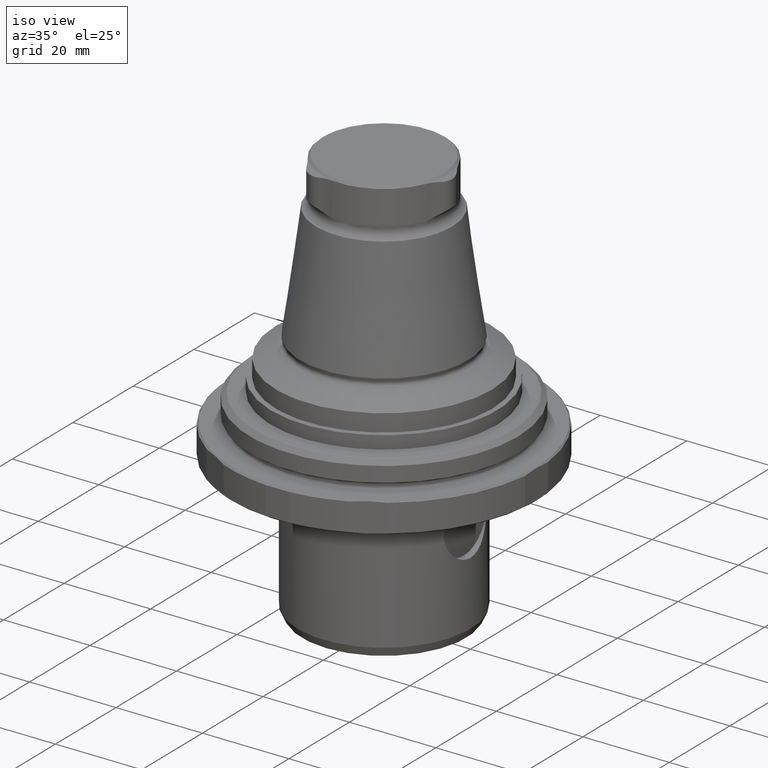
[diagram: clean part render]
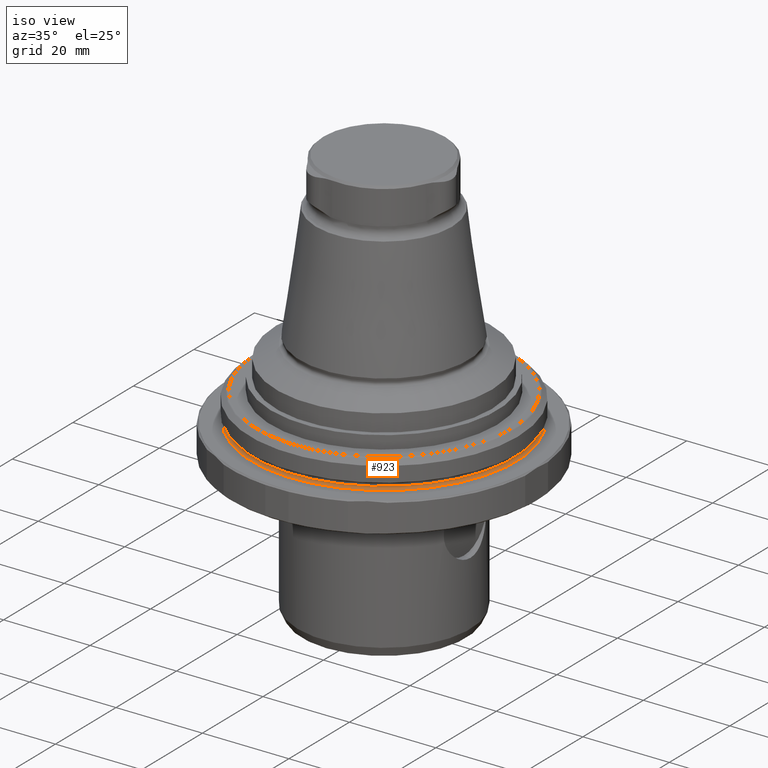
[diagram: same view with one face highlighted and labeled with its STEP entity id]
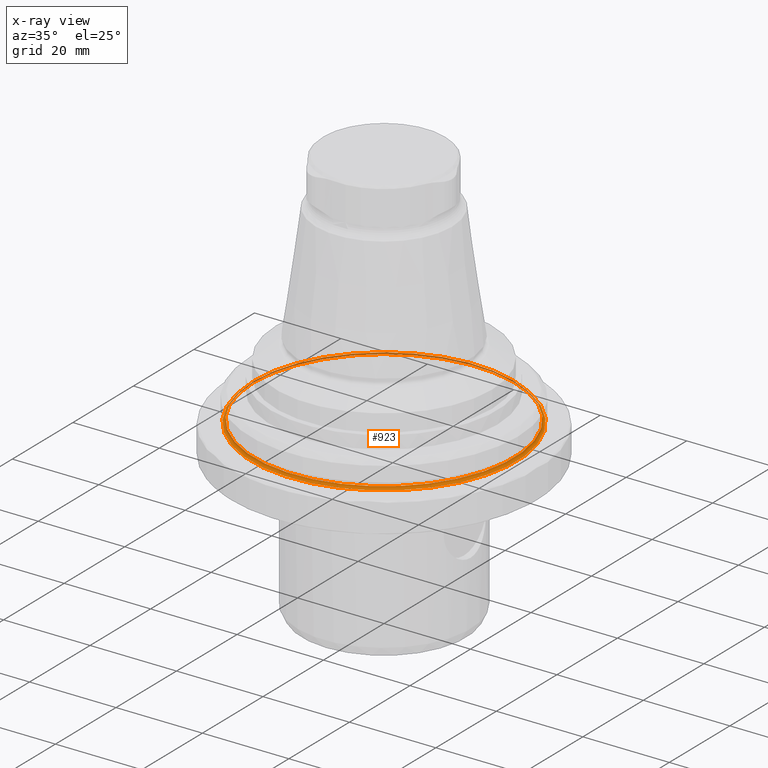
[diagram: x-ray of the same camera — body ghosted, the highlighted face saturated]
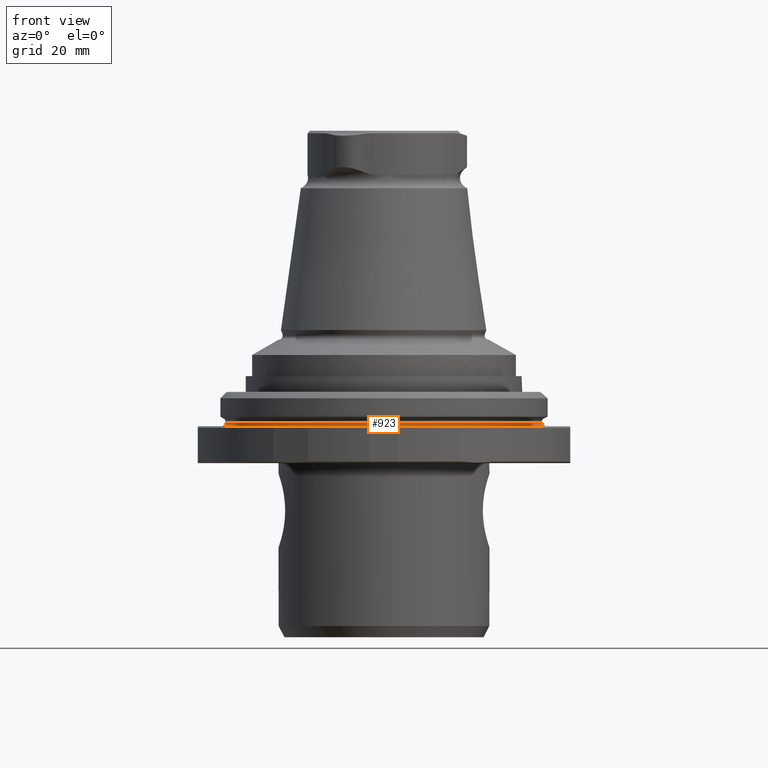
[diagram: same view with one face highlighted and labeled with its STEP entity id]
A machine part, iso view. The second image highlights one B-rep face of the part: STEP entity #923.
The next image is the same camera in x-ray: the body ghosted, the highlighted face saturated — about 23% of this face is hidden behind the body in this view.
A second angle (front view) of the same face is appended — the face is thin or edge-on in the first view.
In plain terms, the highlighted toroidal blend (fillet) surface has major radius 30.65 mm and minor (blend) radius 0.6 mm.
Its self-contained STEP definition (entity closure, byte-faithful):
#20=TOROIDAL_SURFACE('',#1029,30.65,0.6);
#283=ORIENTED_EDGE('',*,*,#476,.F.);
#284=ORIENTED_EDGE('',*,*,#478,.T.);
#476=EDGE_CURVE('',#585,#585,#658,.T.);
#478=EDGE_CURVE('',#587,#587,#660,.T.);
#585=VERTEX_POINT('',#1582);
#587=VERTEX_POINT('',#1588);
#658=CIRCLE('',#1026,30.65);
#660=CIRCLE('',#1030,30.05);
#726=EDGE_LOOP('',(#283));
#727=EDGE_LOOP('',(#284));
#822=FACE_BOUND('',#726,.T.);
#823=FACE_BOUND('',#727,.T.);
#923=ADVANCED_FACE('',(#822,#823),#20,.F.);
#1026=AXIS2_PLACEMENT_3D('',#1581,#1215,#1216);
#1029=AXIS2_PLACEMENT_3D('',#1586,#1221,#1222);
#1030=AXIS2_PLACEMENT_3D('',#1587,#1223,#1224);
#1215=DIRECTION('',(-5.47430718319515E-16,-9.52839907700963E-18,-1.));
#1216=DIRECTION('',(-1.,8.32667268468868E-16,5.47430716006892E-16));
#1221=DIRECTION('',(-5.47430718319515E-16,-9.52839907700963E-18,-1.));
#1222=DIRECTION('',(-1.,8.32667268468868E-16,5.47430716006892E-16));
#1223=DIRECTION('',(-5.47430718319515E-16,-9.52839907700963E-18,-1.));
#1224=DIRECTION('',(-1.,8.32667268468868E-16,5.47430716006892E-16));
#1581=CARTESIAN_POINT('',(-8.82017194387899E-14,-9.8164535202678E-14,-0.999999999999989));
#1582=CARTESIAN_POINT('',(-30.6500000000001,-7.26432834241072E-14,-0.999999999999972));
#1586=CARTESIAN_POINT('',(-8.78732610077982E-14,-9.81588181632318E-14,-0.399999999999989));
#1587=CARTESIAN_POINT('',(-8.78732610077982E-14,-9.81588181632318E-14,-0.399999999999989));
#1588=CARTESIAN_POINT('',(-30.0500000000001,-7.31371667457423E-14,-0.399999999999973));